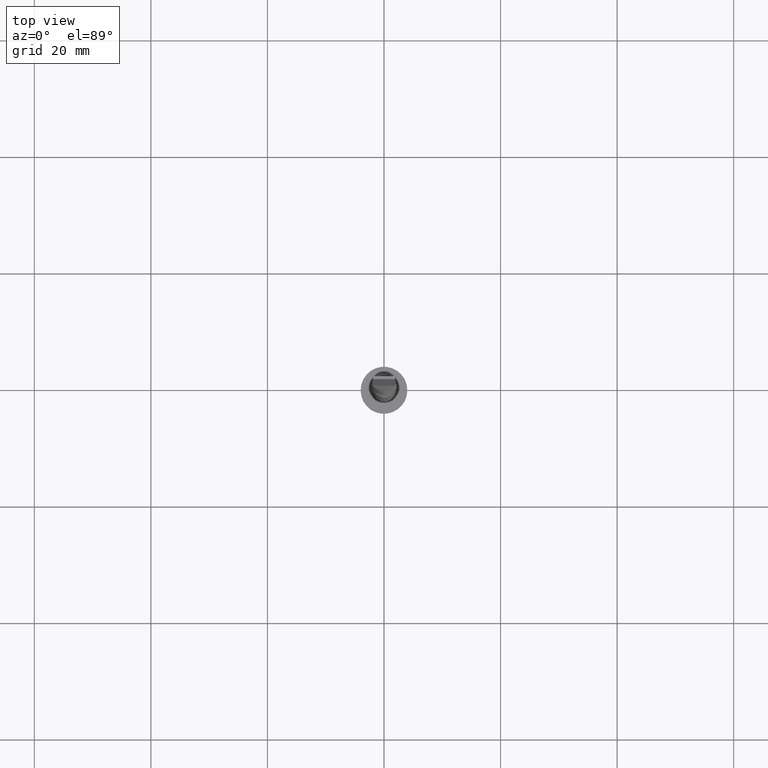
[diagram: clean part render]
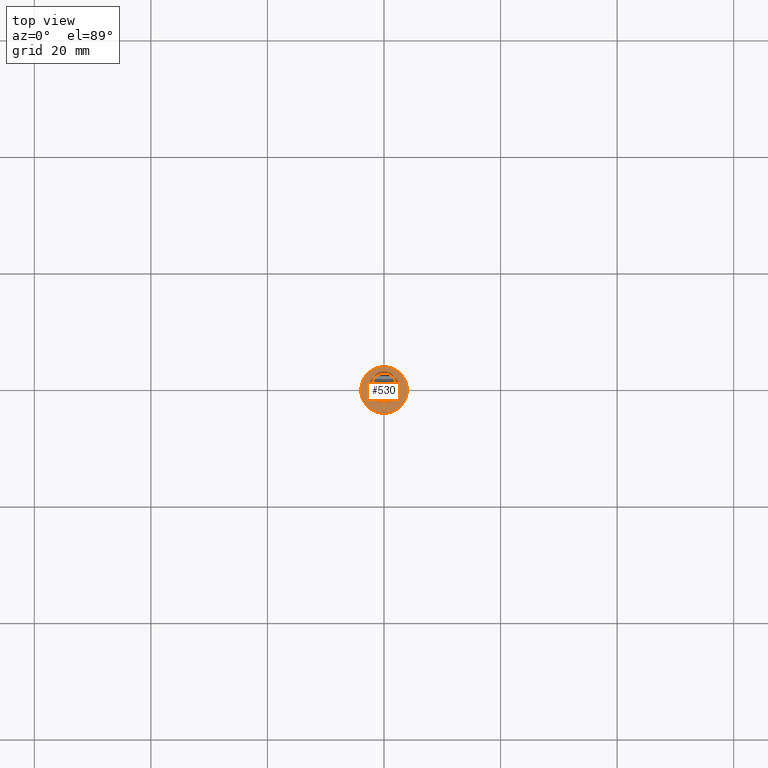
[diagram: same view with one face highlighted and labeled with its STEP entity id]
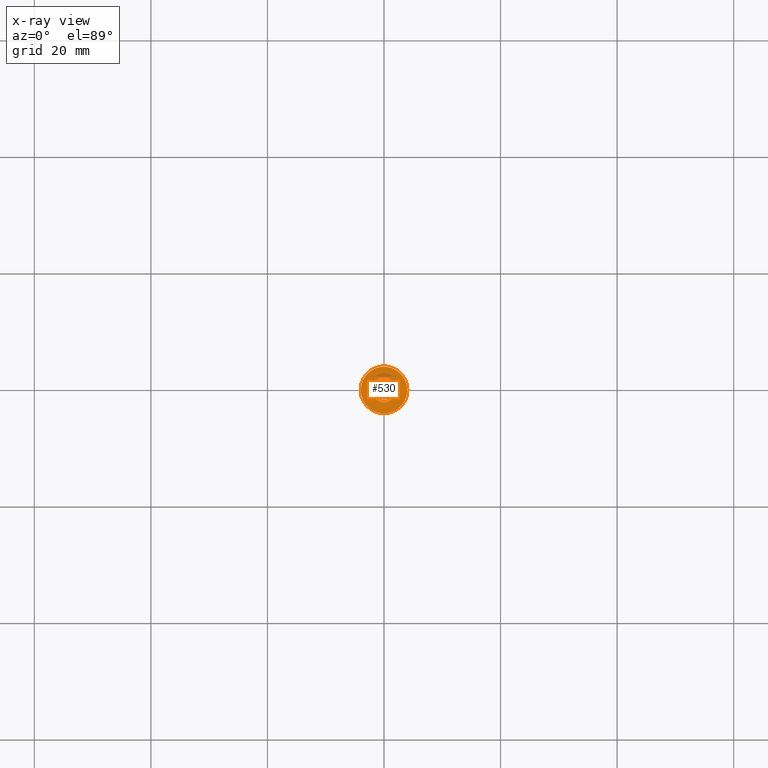
[diagram: x-ray of the same camera — body ghosted, the highlighted face saturated]
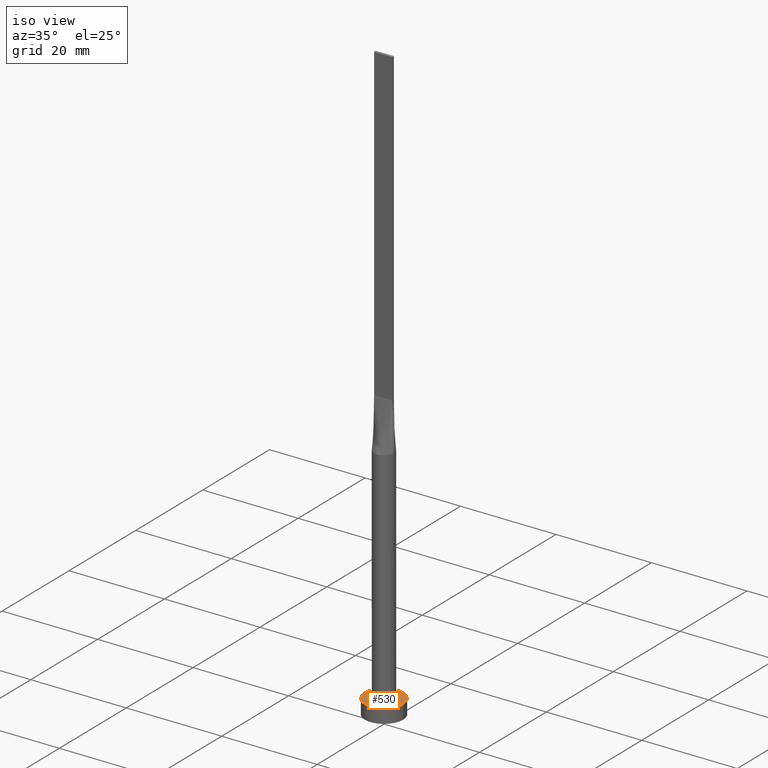
[diagram: same view with one face highlighted and labeled with its STEP entity id]
A machine part, top view. The second image highlights one B-rep face of the part: STEP entity #530.
The next image is the same camera in x-ray: the body ghosted, the highlighted face saturated — about 10% of this face is hidden behind the body in this view.
A second angle (iso view) of the same face is appended — the face is thin or edge-on in the first view.
In plain terms, the highlighted planar face has unit normal (0, 0, 1).
Its self-contained STEP definition (entity closure, byte-faithful):
#19 = ORIENTED_EDGE ( 'NONE', *, *, #226, .T. ) ;
#36 = ORIENTED_EDGE ( 'NONE', *, *, #455, .F. ) ;
#48 = AXIS2_PLACEMENT_3D ( 'NONE', #209, #254, #504 ) ;
#58 = AXIS2_PLACEMENT_3D ( 'NONE', #358, #237, #496 ) ;
#67 = PLANE ( 'NONE',  #48 ) ;
#70 = DIRECTION ( 'NONE',  ( 0.000000000000000000, 0.000000000000000000, 1.000000000000000000 ) ) ;
#87 = AXIS2_PLACEMENT_3D ( 'NONE', #235, #450, #363 ) ;
#99 = CARTESIAN_POINT ( 'NONE',  ( -4.000000000000000000, 0.000000000000000000, 3.000000000000000000 ) ) ;
#104 = CIRCLE ( 'NONE', #193, 2.100000000000000089 ) ;
#106 = CARTESIAN_POINT ( 'NONE',  ( 2.100000000000000089, 2.571758278209441957E-16, 3.000000000000000000 ) ) ;
#124 = CIRCLE ( 'NONE', #58, 4.000000000000000000 ) ;
#149 = CIRCLE ( 'NONE', #281, 2.100000000000000089 ) ;
#179 = EDGE_LOOP ( 'NONE', ( #19, #473 ) ) ;
#193 = AXIS2_PLACEMENT_3D ( 'NONE', #256, #70, #508 ) ;
#198 = EDGE_CURVE ( 'NONE', #514, #300, #274, .T. ) ;
#209 = CARTESIAN_POINT ( 'NONE',  ( 0.000000000000000000, 0.000000000000000000, 3.000000000000000000 ) ) ;
#226 = EDGE_CURVE ( 'NONE', #300, #514, #124, .T. ) ;
#228 = ORIENTED_EDGE ( 'NONE', *, *, #445, .F. ) ;
#235 = CARTESIAN_POINT ( 'NONE',  ( 0.000000000000000000, 0.000000000000000000, 3.000000000000000000 ) ) ;
#237 = DIRECTION ( 'NONE',  ( 0.000000000000000000, 0.000000000000000000, 1.000000000000000000 ) ) ;
#243 = CARTESIAN_POINT ( 'NONE',  ( 0.000000000000000000, 0.000000000000000000, 3.000000000000000000 ) ) ;
#254 = DIRECTION ( 'NONE',  ( 0.000000000000000000, 0.000000000000000000, 1.000000000000000000 ) ) ;
#256 = CARTESIAN_POINT ( 'NONE',  ( 0.000000000000000000, 0.000000000000000000, 3.000000000000000000 ) ) ;
#274 = CIRCLE ( 'NONE', #87, 4.000000000000000000 ) ;
#281 = AXIS2_PLACEMENT_3D ( 'NONE', #243, #334, #456 ) ;
#284 = CARTESIAN_POINT ( 'NONE',  ( 4.000000000000000000, 4.898587196589412829E-16, 3.000000000000000000 ) ) ;
#300 = VERTEX_POINT ( 'NONE', #99 ) ;
#306 = VERTEX_POINT ( 'NONE', #497 ) ;
#334 = DIRECTION ( 'NONE',  ( 0.000000000000000000, 0.000000000000000000, 1.000000000000000000 ) ) ;
#358 = CARTESIAN_POINT ( 'NONE',  ( 0.000000000000000000, 0.000000000000000000, 3.000000000000000000 ) ) ;
#363 = DIRECTION ( 'NONE',  ( 1.000000000000000000, 0.000000000000000000, 0.000000000000000000 ) ) ;
#418 = VERTEX_POINT ( 'NONE', #106 ) ;
#426 = FACE_OUTER_BOUND ( 'NONE', #179, .T. ) ;
#430 = EDGE_LOOP ( 'NONE', ( #228, #36 ) ) ;
#445 = EDGE_CURVE ( 'NONE', #306, #418, #149, .T. ) ;
#450 = DIRECTION ( 'NONE',  ( 0.000000000000000000, 0.000000000000000000, 1.000000000000000000 ) ) ;
#455 = EDGE_CURVE ( 'NONE', #418, #306, #104, .T. ) ;
#456 = DIRECTION ( 'NONE',  ( 1.000000000000000000, 0.000000000000000000, 0.000000000000000000 ) ) ;
#473 = ORIENTED_EDGE ( 'NONE', *, *, #198, .T. ) ;
#496 = DIRECTION ( 'NONE',  ( 1.000000000000000000, 0.000000000000000000, 0.000000000000000000 ) ) ;
#497 = CARTESIAN_POINT ( 'NONE',  ( -2.100000000000000089, 0.000000000000000000, 3.000000000000000000 ) ) ;
#504 = DIRECTION ( 'NONE',  ( 1.000000000000000000, 0.000000000000000000, -0.000000000000000000 ) ) ;
#508 = DIRECTION ( 'NONE',  ( 1.000000000000000000, 0.000000000000000000, 0.000000000000000000 ) ) ;
#514 = VERTEX_POINT ( 'NONE', #284 ) ;
#530 = ADVANCED_FACE ( 'NONE', ( #556, #426 ), #67, .T. ) ;
#556 = FACE_BOUND ( 'NONE', #430, .T. ) ;